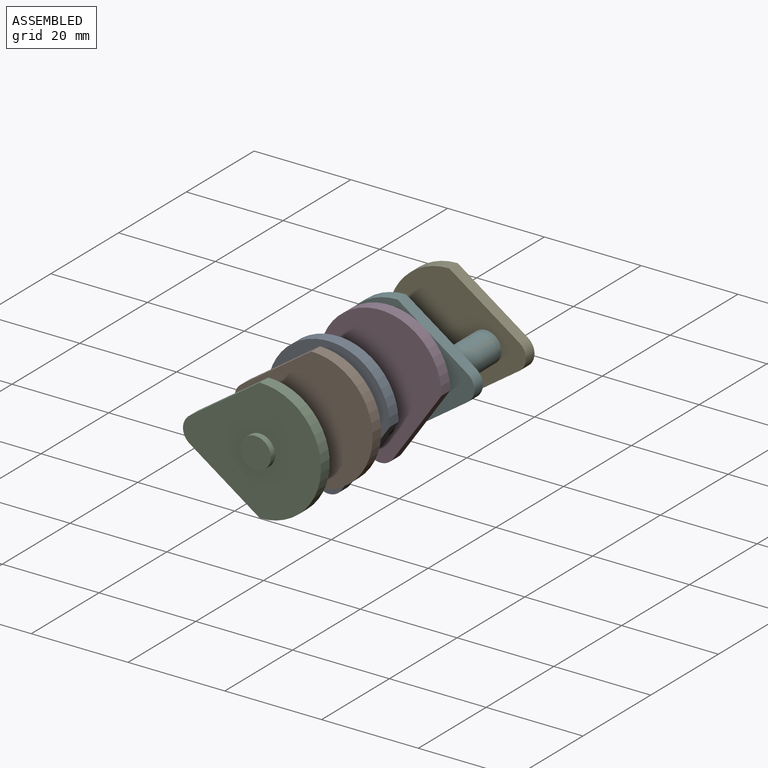
[diagram: assembled view]
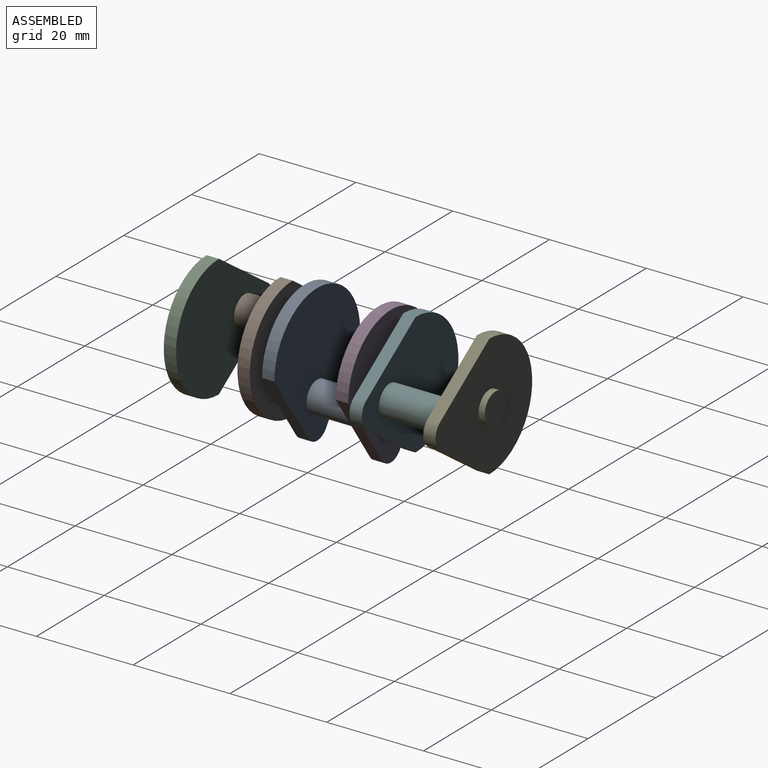
[diagram: assembled view, second angle]
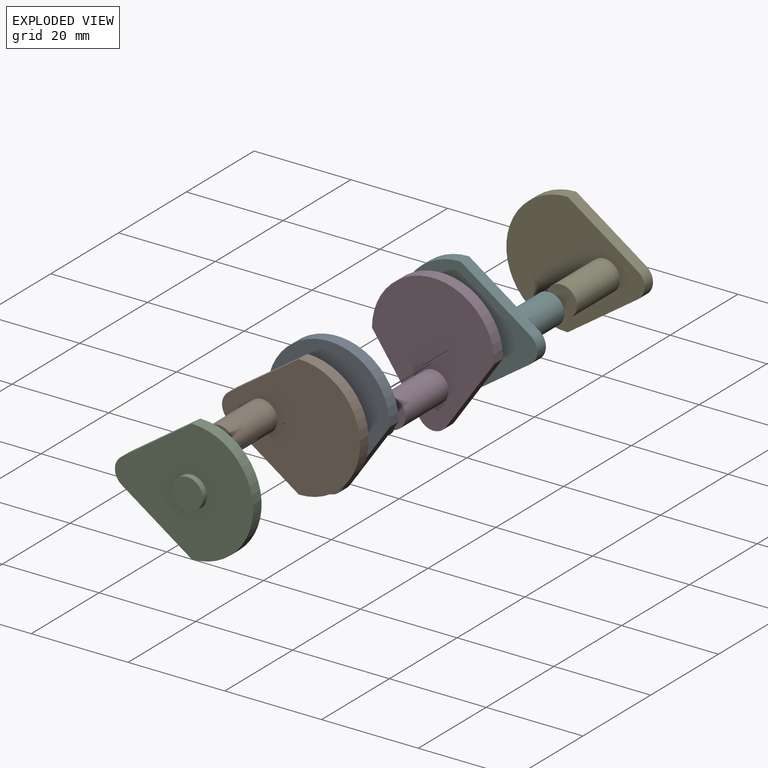
[diagram: exploded view]
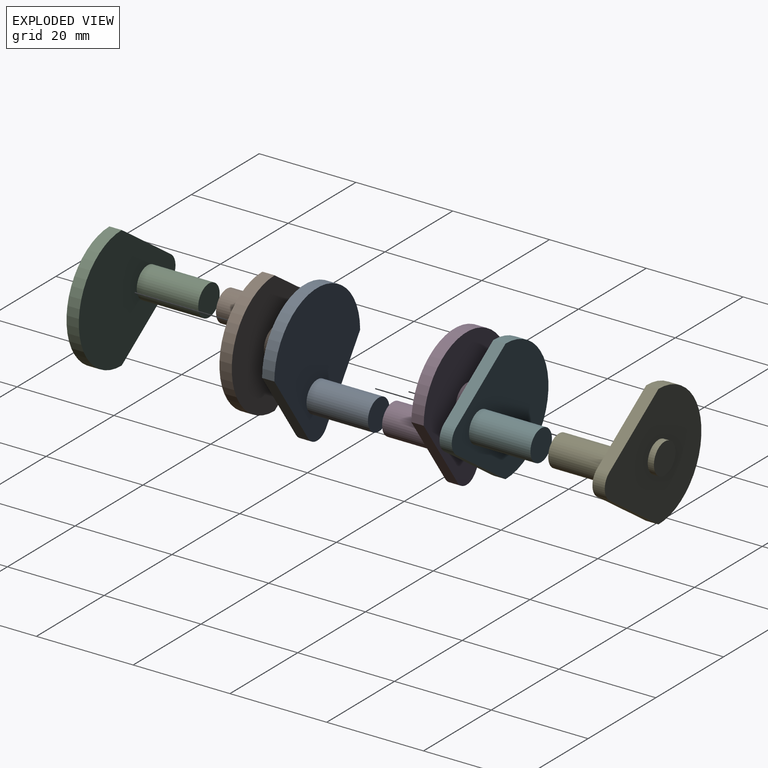
[diagram: exploded view, second angle]
ASSEMBLY  parts=6 mates=5
PART A: 10 faces, bbox 28.5x16.5x25.3 mm
  f0: cylinder r=3.17mm len=12.7mm, axis (0,1,0), area 253.4mm2, adj f1,f7
  f1: plane 6.35x6.35mm, normal (0,-1,0), area 31.7mm2, adj f0
  f2: plane 14.6x10.1mm, normal (-0.57,0,-0.82), area 45.1mm2, adj f3,f5,f6,f7
  f3: cylinder r=12.66mm len=25.32mm, axis (0,-1,0), area 101mm2, adj f2,f4,f6,f7
  f4: plane 14.6x10.1mm, normal (-0.57,0,0.82), area 45.1mm2, adj f3,f5,f6,f7
  f5: cylinder r=3.2mm len=5.12mm, axis (0,-1,0), area 15.1mm2, adj f2,f4,f6,f7
  f6: plane 28.53x25.32mm, normal (0,1,0), area 446.8mm2, adj f2,f3,f4,f5,f8
  f7: plane 28.53x25.32mm, normal (0,-1,0), area 446.8mm2, adj f0,f2,f3,f4,f5
  f8: cylinder r=3.17mm len=6.35mm, axis (0,-1,0), area 25.3mm2, adj f6,f9
  f9: plane 6.35x6.35mm, normal (0,1,0), area 31.7mm2, adj f8
PART B: same geometry as A
PART C: same geometry as A
PART D: same geometry as A
PART E: same geometry as A
PART F: same geometry as A
PLACE A rot(axis=(0.71,0,0.71),180deg) t=(30.47,15.36,8.06)mm
PLACE B t=(30.47,7.74,8.06)mm
PLACE C rot(axis=(1,0,0),180deg) t=(30.47,-4.96,8.06)mm
PLACE D rot(axis=(0,-1,0),90deg) t=(30.47,28.06,8.06)mm
PLACE E rot(axis=(0,1,0),180deg) t=(30.47,48.38,8.06)mm
PLACE F rot(axis=(0,0,1),180deg) t=(30.47,35.68,8.06)mm
MATE fastened C.f0 <-> B.f0  axis (0,1,0) through (22.85,7.74,8.06)mm
MATE fastened D.f0 <-> A.f0  axis (0,-1,0) through (30.47,15.36,0.44)mm
MATE fastened E.f0 <-> F.f0  axis (0,1,0) through (38.09,35.68,8.06)mm
MATE fastened A.f8 <-> B.f8  axis (0,-1,0) through (30.47,11.55,8.06)mm
MATE fastened F.f8 <-> D.f8  axis (0,-1,0) through (30.47,31.87,8.06)mm
